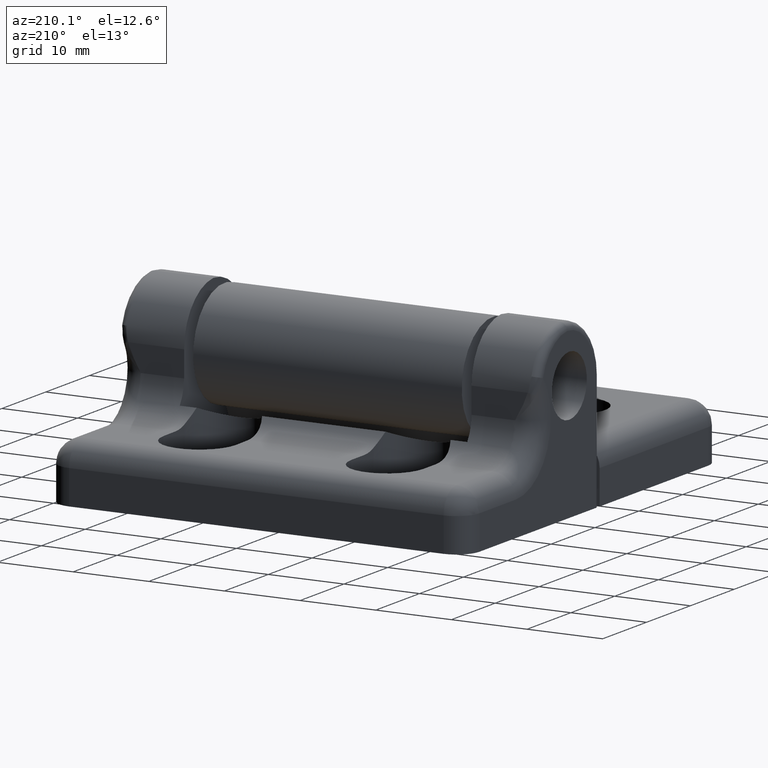
[diagram: clean part render]
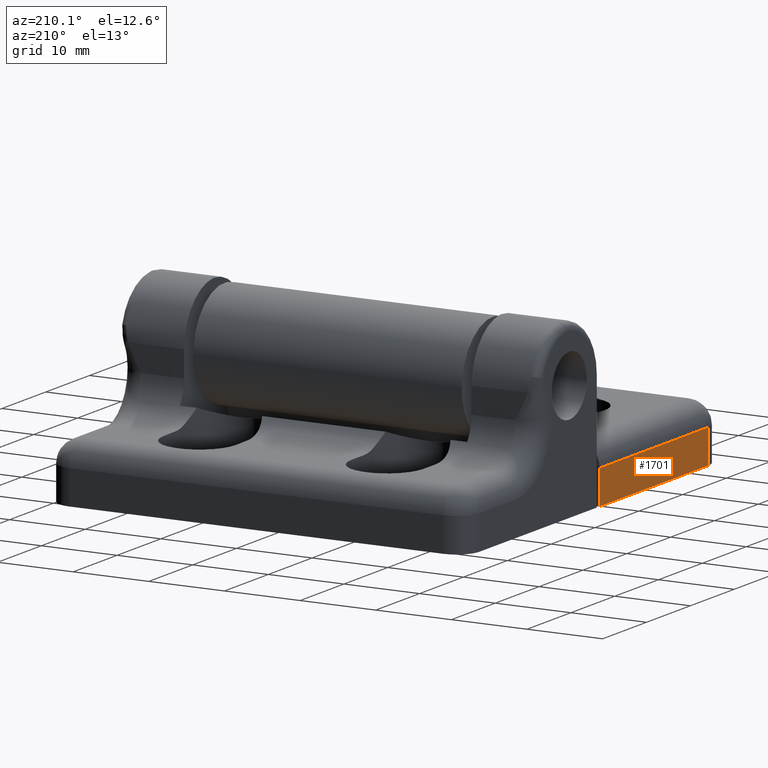
[diagram: same view with one face highlighted and labeled with its STEP entity id]
A machine part, auxiliary view. The second image highlights one B-rep face of the part: STEP entity #1701.
In plain terms, the highlighted planar face has unit normal (1, -0, 0).
Its self-contained STEP definition (entity closure, byte-faithful):
#60=PLANE('',#1824);
#126=LINE('',#2584,#269);
#131=LINE('',#2593,#274);
#147=LINE('',#2644,#290);
#148=LINE('',#2645,#291);
#269=VECTOR('',#2036,24.8);
#274=VECTOR('',#2043,4.5);
#290=VECTOR('',#2089,24.8);
#291=VECTOR('',#2090,4.5);
#459=FACE_OUTER_BOUND('',#562,.T.);
#562=EDGE_LOOP('',(#1248,#1249,#1250,#1251));
#770=VERTEX_POINT('',#2577);
#772=VERTEX_POINT('',#2582);
#775=VERTEX_POINT('',#2591);
#795=VERTEX_POINT('',#2643);
#941=EDGE_CURVE('',#772,#770,#126,.T.);
#946=EDGE_CURVE('',#775,#772,#131,.T.);
#971=EDGE_CURVE('',#795,#775,#147,.T.);
#972=EDGE_CURVE('',#795,#770,#148,.T.);
#1248=ORIENTED_EDGE('',*,*,#941,.F.);
#1249=ORIENTED_EDGE('',*,*,#946,.F.);
#1250=ORIENTED_EDGE('',*,*,#971,.F.);
#1251=ORIENTED_EDGE('',*,*,#972,.T.);
#1701=ADVANCED_FACE('',(#459),#60,.F.);
#1824=AXIS2_PLACEMENT_3D('',#2642,#2087,#2088);
#2036=DIRECTION('',(0.,-1.,0.));
#2043=DIRECTION('',(0.,0.,1.));
#2087=DIRECTION('center_axis',(1.,0.,0.));
#2088=DIRECTION('ref_axis',(0.,0.,-1.));
#2089=DIRECTION('',(0.,1.,0.));
#2090=DIRECTION('',(0.,0.,1.));
#2577=CARTESIAN_POINT('',(-17.75,-9.75,4.5));
#2582=CARTESIAN_POINT('',(-17.75,15.05,4.5));
#2584=CARTESIAN_POINT('',(-17.75,12.5501050049973,4.5));
#2591=CARTESIAN_POINT('',(-17.75,15.05,0.));
#2593=CARTESIAN_POINT('',(-17.75,15.05,0.));
#2642=CARTESIAN_POINT('Origin',(-17.75,15.0501000099975,-0.000100009997474));
#2643=CARTESIAN_POINT('',(-17.75,-9.75,0.));
#2644=CARTESIAN_POINT('',(-17.75,-9.75,0.));
#2645=CARTESIAN_POINT('',(-17.75,-9.75,0.));